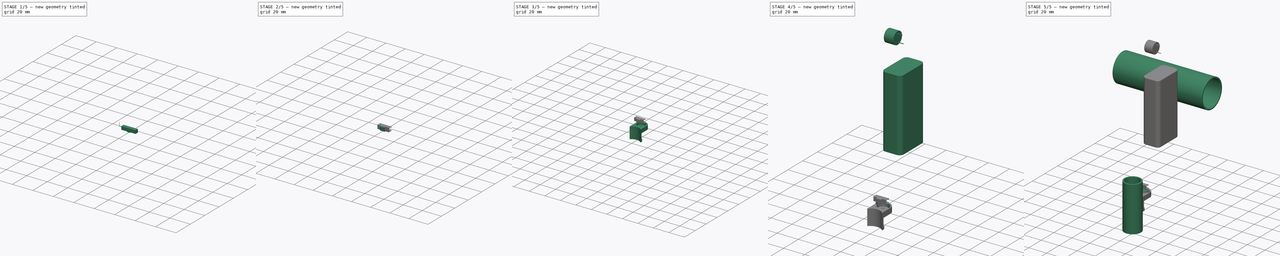
[diagram: build sequence overview — one tinted view per stage of 5, left to right]
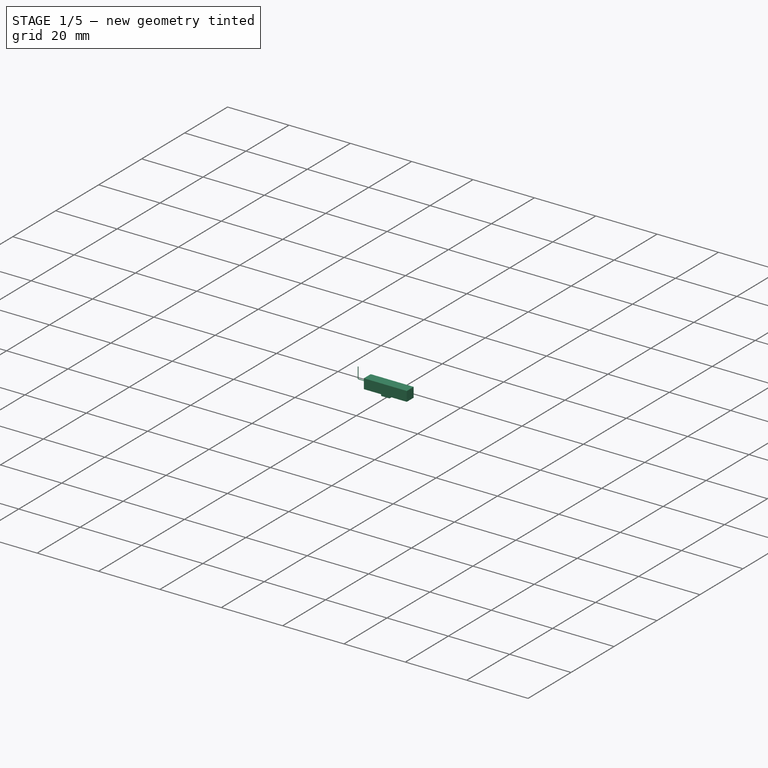
[diagram: stage 1 of 5 — iso view after this stage's code; geometry added in this stage tinted green]
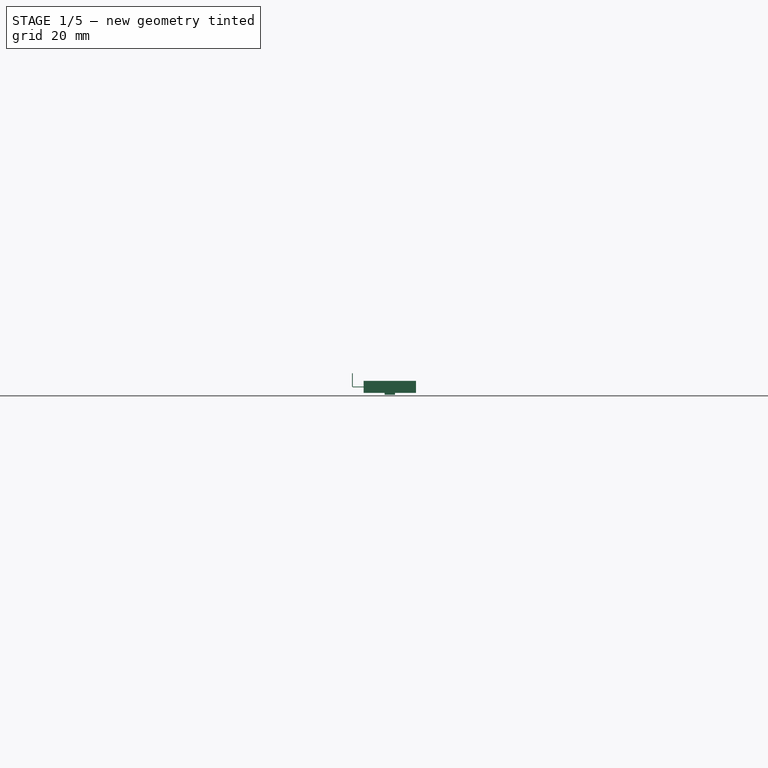
[diagram: stage 1 of 5 — front view after this stage's code; geometry added in this stage tinted green]
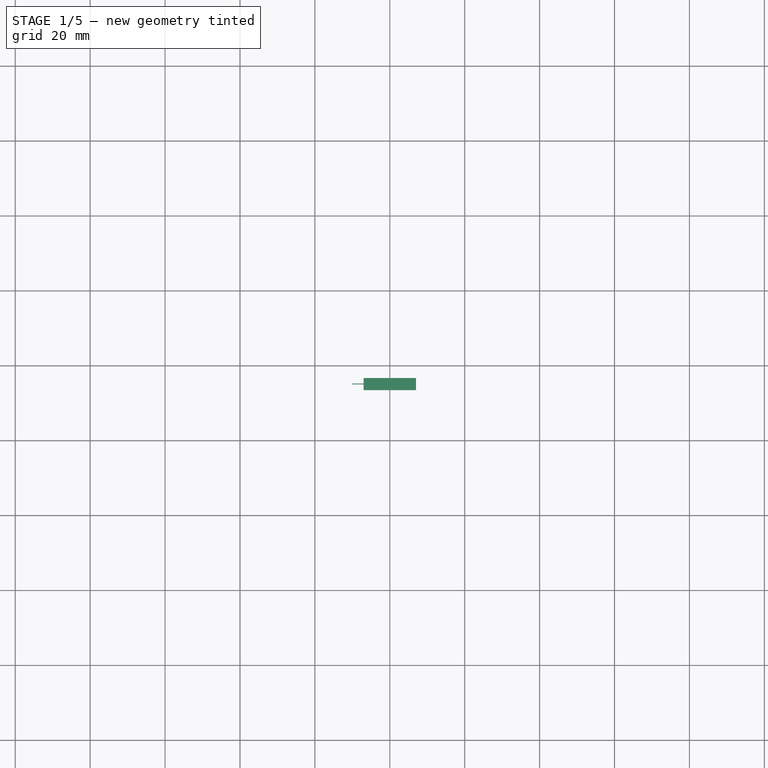
[diagram: stage 1 of 5 — top view after this stage's code; geometry added in this stage tinted green]
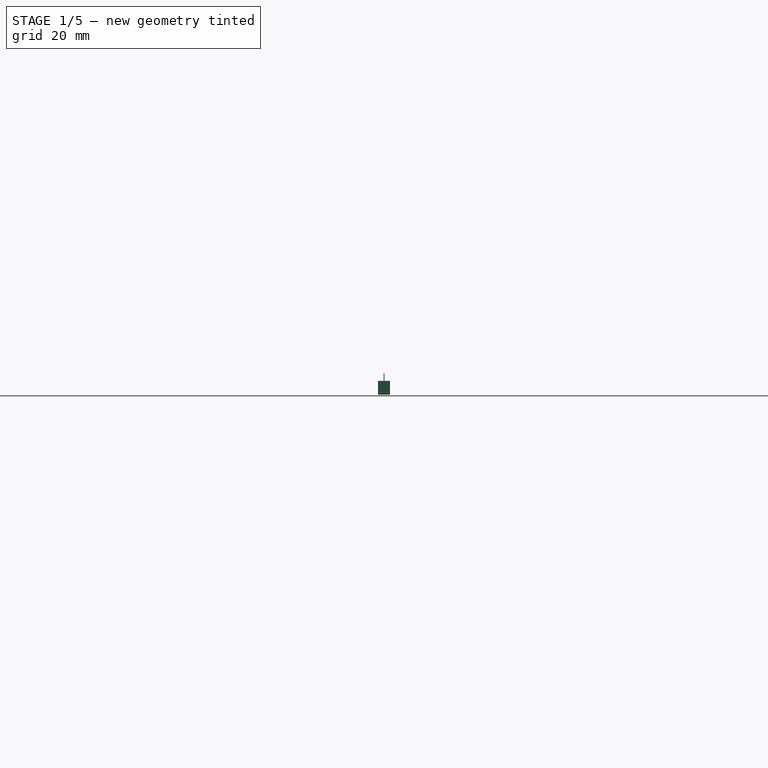
[diagram: stage 1 of 5 — right view after this stage's code; geometry added in this stage tinted green]
FCSTD DOCUMENT  (FreeCAD 0.19R22988 (Git))
Label: part mount
License: All rights reserved
LicenseURL: http://en.wikipedia.org/wiki/All_rights_reserved
objects: Sketcher::SketchObject×21, PartDesign::Plane×16, PartDesign::Pad×13, PartDesign::ShapeBinder×12, PartDesign::Body×9, PartDesign::Fillet×5, PartDesign::Line×4, PartDesign::Revolution×3, PartDesign::Pocket×3, PartDesign::Mirrored×2, PartDesign::AdditivePipe×1, PartDesign::Point×1
note: 115 computed .brp shape members not serialized (recipe doc carries the construction recipe); baked Part::Feature solids carry a one-line shape summary decoded from their .brp

FEATURE [PartDesign::Plane] DatumPlane
  AttachmentOffset = pos=(0,0,-10) rot=(0,0,1;0rad)
  Length = 64.3944
  MapMode = 5
  Placement = pos=(0,0,-10) rot=(0,0,1;0rad)
  ResizeMode = 0
  Support = -> [XY_Plane]
  Width = 117.994
FEATURE [PartDesign::Plane] DatumPlane001
  AttachmentOffset = pos=(0,0,110) rot=(0,0,1;0rad)
  Length = 64.3944
  MapMode = 5
  Placement = pos=(0,0,110) rot=(0,0,1;0rad)
  ResizeMode = 0
  Support = -> [XY_Plane]
  Width = 117.994
FEATURE [Sketcher::SketchObject] Sketch
  ExternalGeometry = -> [DatumPlane001,DatumPlane]
  MapMode = 5
  Placement = pos=(0,0,0) rot=(1,0,0;1.5708rad)
  Support = -> [XZ_Plane]
  sketch-geometry (8):
    g0: LineSegment StartX=10.1 StartY=110 StartZ=0 EndX=11.6 EndY=110 EndZ=0
    g1: LineSegment StartX=11.6 StartY=110 StartZ=0 EndX=11.6 EndY=-10 EndZ=0
    g2: LineSegment StartX=11.6 StartY=-10 StartZ=0 EndX=10.1 EndY=-10 EndZ=0
    g3: LineSegment StartX=10.1 StartY=-10 StartZ=0 EndX=10.1 EndY=110 EndZ=0
    g4: LineSegment StartX=-11.6 StartY=110 StartZ=0 EndX=-10.1 EndY=110 EndZ=0
    g5: LineSegment StartX=-10.1 StartY=110 StartZ=0 EndX=-10.1 EndY=-10 EndZ=0
    g6: LineSegment StartX=-10.1 StartY=-10 StartZ=0 EndX=-11.6 EndY=-10 EndZ=0
    g7: LineSegment StartX=-11.6 StartY=-10 StartZ=0 EndX=-11.6 EndY=110 EndZ=0
  constraints (23):
    c: Coincident(g0,g1)
    c: Coincident(g1,g2)
    c: Coincident(g2,g3)
    c: Coincident(g3,g0)
    c: Horizontal(g0)
    c: Horizontal(g2)
    c: Vertical(g1)
    c: Vertical(g3)
    c: Coincident(g4,g5)
    c: Coincident(g5,g6)
    c: Coincident(g6,g7)
    c: Coincident(g7,g4)
    c: Horizontal(g4)
    c: Horizontal(g6)
    c: Vertical(g5)
    c: Vertical(g7)
    c: Equal(g0,g4)
    c: Equal(g1,g5)
    c: DistanceX(g4,g0) = 23.2
    c: Symmetric(g0,g4,g-2)
    c: DistanceX(g0,g0) = 1.5
    c: PointOnObject(g0,g-3)
    c: PointOnObject(g1,g-4)
FEATURE [PartDesign::Revolution] Revolution
  AllowMultiFace = false
  Angle = 360
  Axis = (0,-2e-16,1)
  Base = (0,0,0)
  Placement = pos=(0,0,0) rot=(1,0,0;1.5708rad)
  Profile = -> Sketch
  ReferenceAxis = -> Sketch [V_Axis]
FEATURE [PartDesign::Body] Body003  label="Magnet"
  Group = -> [DatumPlane003,CopyPad002,Sketch007,Pad003,Fillet]
  Origin = -> Origin003
  Tip = -> Fillet
FEATURE [Sketcher::SketchObject] Sketch008
  ExternalGeometry = -> [Revolution]
  MapMode = 5
  Placement = pos=(0,0,110) rot=(0,0,1;0rad)
  Support = -> [DatumPlane001]
  sketch-geometry (8):
    g0: LineSegment StartX=6 StartY=11.6 StartZ=0 EndX=6 EndY=9.34666 EndZ=0
    g1: LineSegment StartX=-6 StartY=11.6 StartZ=0 EndX=-6 EndY=8.96742 EndZ=0
    g2: LineSegment StartX=-6 StartY=8.96742 StartZ=0 EndX=-5.65202 EndY=8.96742 EndZ=0
    g3: LineSegment StartX=6 StartY=9.34666 StartZ=0 EndX=5 EndY=9.34666 EndZ=0
    g4: ArcOfCircle CenterX=0 CenterY=0 CenterZ=0 NormalX=0 NormalY=0 NormalZ=1 AngleXU=0 Radius=10.6 StartAngle=1.07958 EndAngle=2.13319
    g5: LineSegment StartX=-6 StartY=11.6 StartZ=0 EndX=6 EndY=11.6 EndZ=0
    g6: GeomPoint X=0 Y=11.6 Z=0
    g7: GeomPoint X=0 Y=10.6 Z=0
  constraints (20):
    c: Coincident(g5,g1)
    c: Coincident(g5,g0)
    c: Coincident(g0,g3)
    c: Coincident(g1,g2)
    c: Vertical(g0)
    c: Vertical(g1)
    c: Symmetric(g0,g1,g-2)
    c: DistanceX(g5,g5) = 12
    c: Horizontal(g2)
    c: Horizontal(g3)
    c: Coincident(g4,g2)
    c: Coincident(g4,g3)
    c: Coincident(g4,g-1)
    c: DistanceX(g3,g3) = 1
    c: PointOnObject(g6,g-3)
    c: PointOnObject(g6,g-2)
    c: DistanceY(g6,g0) = 0
    c: PointOnObject(g7,g4)
    c: PointOnObject(g7,g-2)
    c: DistanceY(g7,g6) = 1
FEATURE [PartDesign::Pad] Pad004
  BaseFeature = -> Revolution
  Direction = (1,1,1)
  Length = 10
  Length2 = 100
  Placement = pos=(0,0,0) rot=(1,0,0;1.5708rad)
  Profile = -> Sketch008
  Type = 3
  UpToFace = -> DatumPlane
FEATURE [PartDesign::Plane] DatumPlane004
  Length = 127.252
  MapMode = 5
  Placement = pos=(0,0,0) rot=(0.57735,0.57735,0.57735;2.0944rad)
  ResizeMode = 0
  Support = -> [YZ_Plane]
  Width = 158.653
FEATURE [Sketcher::SketchObject] Sketch009
  ExternalGeometry = -> [Pad004,DatumPlane,DatumPlane001]
  MapMode = 5
  Placement = pos=(0,0,0) rot=(0.57735,0.57735,0.57735;2.0944rad)
  Support = -> [DatumPlane004]
  sketch-geometry (11):
    g0: Circle CenterX=55.3 CenterY=85 CenterZ=0 NormalX=0 NormalY=0 NormalZ=1 AngleXU=0 Radius=15.9
    g1: ArcOfCircle CenterX=73.6 CenterY=-2.03333 CenterZ=0 NormalX=0 NormalY=0 NormalZ=1 AngleXU=0 Radius=62.0333 StartAngle=1.5708 EndAngle=3.10881
    g2: LineSegment StartX=11.6 StartY=110 StartZ=0 EndX=73.6 EndY=110 EndZ=0
    g3: LineSegment StartX=78.6 StartY=105 StartZ=0 EndX=78.6 EndY=65 EndZ=0
    g4: ArcOfCircle CenterX=73.6 CenterY=65 CenterZ=0 NormalX=0 NormalY=0 NormalZ=1 AngleXU=0 Radius=5 StartAngle=4.71239 EndAngle=6.28319
    g5: ArcOfCircle CenterX=73.6 CenterY=105 CenterZ=0 NormalX=0 NormalY=0 NormalZ=1 AngleXU=0 Radius=5 StartAngle=-9e-16 EndAngle=1.5708
    g6: LineSegment [constr] StartX=55.3 StartY=85 StartZ=0 EndX=55.3 EndY=54.5823 EndZ=0
    g7: LineSegment [constr] StartX=55.3 StartY=100.9 StartZ=0 EndX=52.5522 EndY=100.9 EndZ=0
    g8: LineSegment StartX=11.6 StartY=110 StartZ=0 EndX=11.6 EndY=0 EndZ=0
    g9: LineSegment [constr] StartX=11.6 StartY=2.2e-15 StartZ=0 EndX=11.6 EndY=-10 EndZ=0
    g10: LineSegment [constr] StartX=73.6 StartY=65 StartZ=0 EndX=73.6 EndY=54.2273 EndZ=0
  constraints (31):
    c: Vertical(g3)
    c: Tangent(g3,g4) = 1.5708
    c: Tangent(g2,g5) = 1.5708
    c: Tangent(g3,g5) = 1.5708
    c: Horizontal(g2)
    c: Equal(g5,g4)
    c: Coincident(g6,g0)
    c: Vertical(g6)
    c: PointOnObject(g7,g6)
    c: Horizontal(g7)
    c: Tangent(g7,g0)
    c: Coincident(g8,g2)
    c: Coincident(g8,g1)
    c: Vertical(g8)
    c: Coincident(g9,g1)
    c: Vertical(g9)
    c: Radius(g5) = 5
    c: DistanceX(g0,g3) = 23.3
    c: Diameter(g0) = 31.8
    c: DistanceY(g0,g2) = 25
    c: Coincident(g1,g4)
    c: Tangent(g1,g4)
    c: Coincident(g10,g4)
    c: Vertical(g10)
    c: PointOnObject(g1,g10)
    c: DistanceY(g1,g2) = 50
    c: PointOnObject(g2,g-3)
    c: PointOnObject(g2,g-5)
    c: DistanceX(g2,g3) = 67
    c: DistanceY(g9,g1) = 10
    c: PointOnObject(g9,g-4)
FEATURE [PartDesign::Pad] Pad005
  BaseFeature = -> Pad004
  Direction = (1,1,1)
  Length = 5
  Length2 = 100
  Midplane = true
  Placement = pos=(0,0,0) rot=(1,0,0;1.5708rad)
  Profile = -> Sketch009
  Type = 0
FEATURE [PartDesign::Body] Body  label="Tube_Upper"
  Group = -> [Sketch,Revolution,DatumPlane001,DatumPlane,Sketch008,Pad004,DatumPlane004,Sketch009,Pad005]
  Origin = -> Origin
  Tip = -> Pad005
FEATURE [PartDesign::Plane] DatumPlane005
  AttachmentOffset = pos=(0,0,3.5) rot=(0,0,1;0rad)
  Length = 60
  MapMode = 5
  Placement = pos=(0,15.1,-6.7e-15) rot=(-1,0,0;1.5708rad)
  ResizeMode = 0
  Support = -> [Pad005]
  Width = 60
FEATURE [PartDesign::ShapeBinder] CopyPad005
  Placement = pos=(0,0,0) rot=(1,0,0;1.5708rad)
  TraceSupport = false
FEATURE [PartDesign::Plane] DatumPlane006
  Length = 60
  MapMode = 5
  Placement = pos=(0,-2.2e-15,-10) rot=(1,0,0;3.14159rad)
  ResizeMode = 0
  Support = -> [CopyPad005]
  Width = 60
FEATURE [PartDesign::ShapeBinder] CopyYZ_Plane
  Placement = pos=(0,0,0) rot=(0.57735,0.57735,0.57735;2.0944rad)
  TraceSupport = false
FEATURE [PartDesign::Plane] DatumPlane007
  Length = 60
  MapMode = 5
  Placement = pos=(0,0,0) rot=(0.57735,0.57735,0.57735;2.0944rad)
  ResizeMode = 0
  Support = -> [CopyYZ_Plane]
  Width = 60
FEATURE [Sketcher::SketchObject] Sketch010
  ExternalGeometry = -> [DatumPlane006,DatumPlane007]
  MapMode = 5
  Placement = pos=(0,15.1,-6.7e-15) rot=(-1,0,0;1.5708rad)
  Support = -> [DatumPlane005]
  sketch-geometry (9):
    g0: LineSegment StartX=7 StartY=7.5 StartZ=0 EndX=1.37971 EndY=7.5 EndZ=0
    g1: LineSegment StartX=-7 StartY=7.5 StartZ=0 EndX=-7 EndY=4.3 EndZ=0
    g2: LineSegment StartX=-7 StartY=4.3 StartZ=0 EndX=7 EndY=4.3 EndZ=0
    g3: LineSegment StartX=7 StartY=4.3 StartZ=0 EndX=7 EndY=7.5 EndZ=0
    g4: LineSegment StartX=1.37971 StartY=8 StartZ=0 EndX=-1.3797 EndY=8 EndZ=0
    g5: LineSegment StartX=-1.3797 StartY=8 StartZ=0 EndX=-1.3797 EndY=7.5 EndZ=0
    g6: LineSegment StartX=1.37971 StartY=7.5 StartZ=0 EndX=1.37971 EndY=8 EndZ=0
    g7: GeomPoint X=1.1e-15 Y=10 Z=0
    g8: LineSegment StartX=-1.3797 StartY=7.5 StartZ=0 EndX=-7 EndY=7.5 EndZ=0
  constraints (22):
    c: Coincident(g8,g1)
    c: Coincident(g1,g2)
    c: Coincident(g2,g3)
    c: Coincident(g3,g0)
    c: Horizontal(g0)
    c: Vertical(g1)
    c: Vertical(g3)
    c: Coincident(g4,g5)
    c: Coincident(g6,g4)
    c: Vertical(g5)
    c: Vertical(g6)
    c: PointOnObject(g7,g-3)
    c: PointOnObject(g7,g-4)
    c: Symmetric(g1,g2,g-4)
    c: Symmetric(g4,g4,g-4)
    c: DistanceX(g2,g2) = 14
    c: Coincident(g8,g5)
    c: Tangent(g0,g8)
    c: Coincident(g6,g0)
    c: DistanceY(g1,g4) = 3.7
    c: DistanceY(g1,g1) = 3.2
    c: DistanceY(g4,g7) = 2
FEATURE [PartDesign::Pad] Pad006
  Direction = (1,1,1)
  Length = 3.2
  Length2 = 100
  Midplane = true
  Placement = pos=(0,15.1,-6.7e-15) rot=(-1,0,0;1.5708rad)
  Profile = -> Sketch010
  Type = 0
FEATURE [Sketcher::SketchObject] Sketch011
  ExternalGeometry = -> [Pad006]
  MapMode = 5
  Placement = pos=(0,15.1,-6.7e-15) rot=(-1,0,0;1.5708rad)
  Support = -> [DatumPlane005]
  sketch-geometry (5):
    g0: LineSegment StartX=-7 StartY=5.9 StartZ=0 EndX=-9.79066 EndY=5.9 EndZ=0
    g1: LineSegment StartX=-10 StartY=5.69066 StartZ=0 EndX=-10 EndY=2.28133 EndZ=0
    g2: Circle [constr] CenterX=4.71411 CenterY=5.9 CenterZ=0 NormalX=0 NormalY=0 NormalZ=1 AngleXU=0 Radius=1.6
    g3: LineSegment [constr] StartX=15.3338 StartY=5.9 StartZ=0 EndX=-16.1718 EndY=5.9 EndZ=0
    g4: ArcOfCircle CenterX=-9.79066 CenterY=5.69066 CenterZ=0 NormalX=0 NormalY=0 NormalZ=1 AngleXU=0 Radius=0.209336 StartAngle=1.5708 EndAngle=3.14159
  constraints (9):
    c: PointOnObject(g0,g-6)
    c: Horizontal(g0)
    c: Vertical(g1)
    c: Horizontal(g3)
    c: PointOnObject(g2,g3)
    c: PointOnObject(g0,g3)
    c: Tangent(g0,g4) = -1.5708
    c: Tangent(g1,g4) = -1.5708
    c: DistanceX(g1,g0) = 3
FEATURE [Sketcher::SketchObject] Sketch012
  ExternalGeometry = -> [Sketch011]
  MapMode = 5
  Placement = pos=(-7,15.1,-6.7e-15) rot=(0,-1,0;1.5708rad)
  Support = -> [Pad006]
  sketch-geometry (1):
    g0: Circle CenterX=-5.9 CenterY=0 CenterZ=0 NormalX=0 NormalY=0 NormalZ=1 AngleXU=0 Radius=0.1
  constraints (2):
    c: Coincident(g0,g-3)
    c: Diameter(g0) = 0.2
FEATURE [PartDesign::AdditivePipe] AdditivePipe
  AuxilleryCurvelinear = true
  AuxillerySpineTangent = false
  BaseFeature = -> Pad006
  Binormal = (0,0,0)
  Mode = 0
  Placement = pos=(0,15.1,-6.7e-15) rot=(-1,0,0;1.5708rad)
  Profile = -> Sketch012
  Spine = -> Sketch011 [Edge1,Edge2,Edge3]
  SpineTangent = false
  Transformation = 0
  Transition = 0
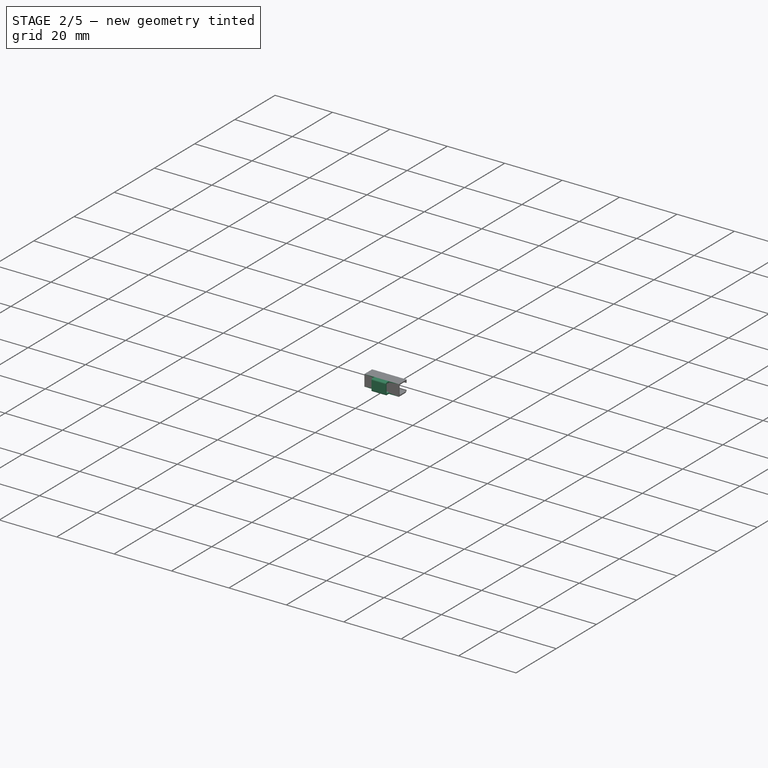
[diagram: stage 2 of 5 — iso view after this stage's code; geometry added in this stage tinted green]
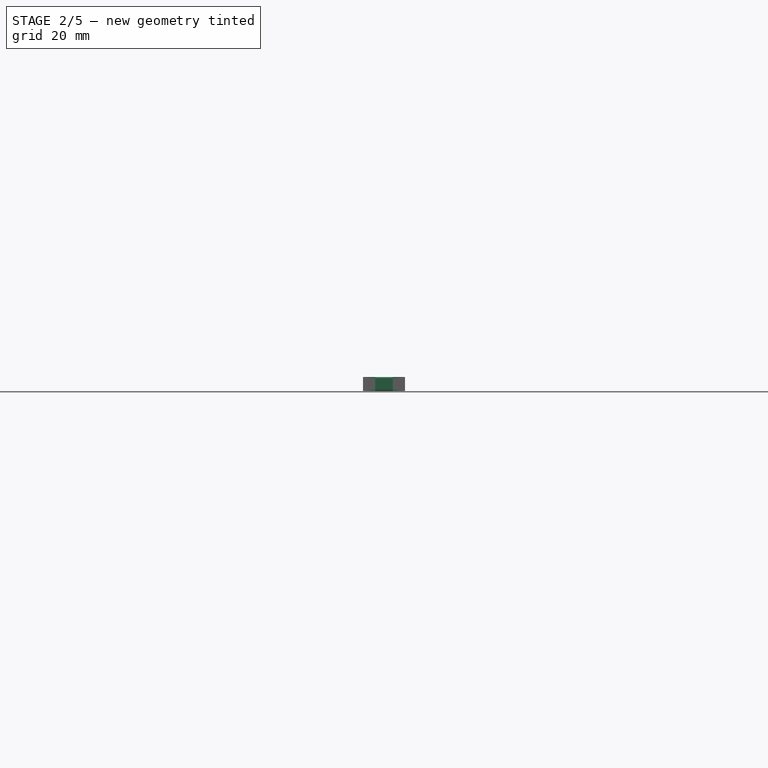
[diagram: stage 2 of 5 — front view after this stage's code; geometry added in this stage tinted green]
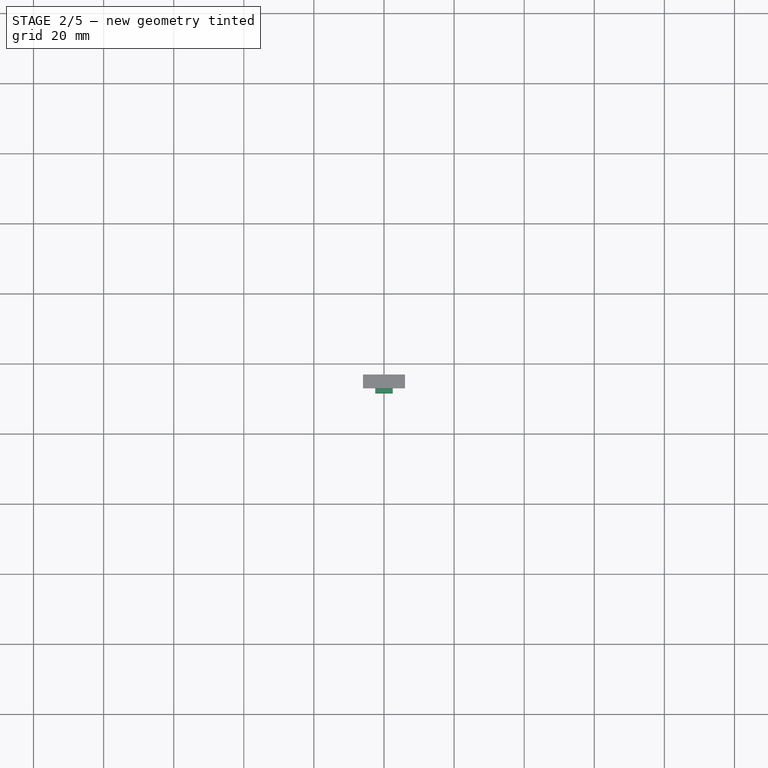
[diagram: stage 2 of 5 — top view after this stage's code; geometry added in this stage tinted green]
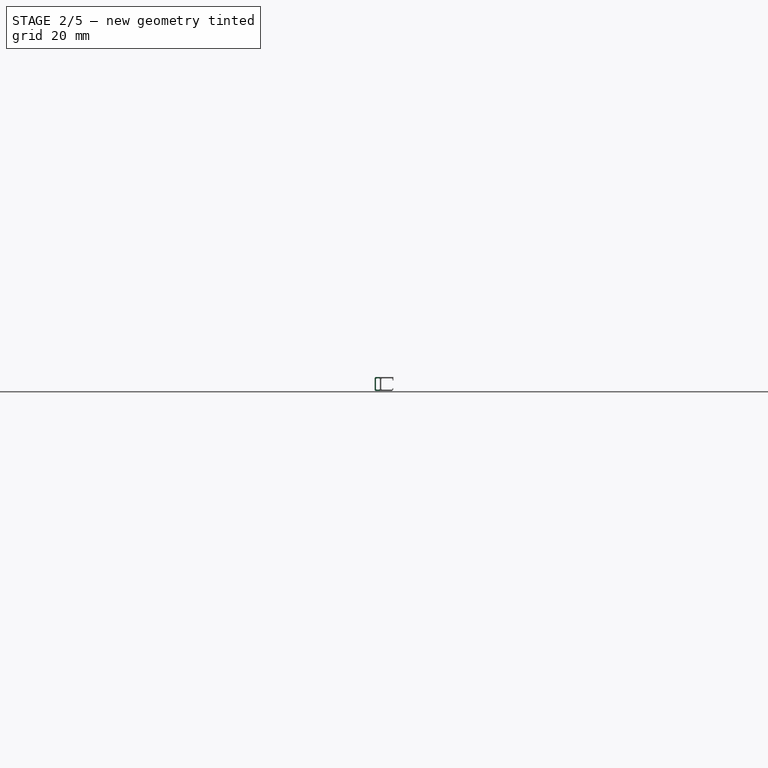
[diagram: stage 2 of 5 — right view after this stage's code; geometry added in this stage tinted green]
FEATURE [PartDesign::Mirrored] Mirrored
  BaseFeature = -> AdditivePipe
  MirrorPlane = -> DatumPlane007
  Originals = -> [AdditivePipe]
  Placement = pos=(0,15.1,-6.7e-15) rot=(-1,0,0;1.5708rad)
FEATURE [PartDesign::Fillet] Fillet001
  Base = -> Mirrored [Face4,Face6,Face10,Face9,Face8,Face1,Face5,Face3]
  BaseFeature = -> Mirrored
  Placement = pos=(0,15.1,-6.7e-15) rot=(-1,0,0;1.5708rad)
  Radius = 0.22
  SupportTransform = false
FEATURE [PartDesign::Body] Body002  label="Magnet_Holder"
  Group = -> [DatumPlane002,Sketch002,Pad,Sketch003,Pocket,Sketch004,Pocket001,Sketch005,Pad001,Sketch006,Pad002,DatumLine002,DatumPoint,DatumPlane010,DatumPlane011,Sketch017,Revolution002,Mirrored001]
  Origin = -> Origin002
  Tip = -> Mirrored001
FEATURE [PartDesign::ShapeBinder] CopyFillet001
  Placement = pos=(0,13.6,-3e-15) rot=(-1,0,0;1.5708rad)
  TraceSupport = false
FEATURE [PartDesign::Plane] DatumPlane012
  Length = 60
  MapMode = 5
  Placement = pos=(6e-16,13.6,-4.3) rot=(0,0,1;0rad)
  ResizeMode = 0
  Support = -> [CopyFillet001]
  Width = 60
FEATURE [PartDesign::Plane] DatumPlane013
  Length = 60
  MapMode = 5
  Placement = pos=(0,13.5,-6.5e-15) rot=(1,0,0;1.5708rad)
  ResizeMode = 0
  Support = -> [Fillet001]
  Width = 60
FEATURE [PartDesign::ShapeBinder] CopyFillet001001
  Placement = pos=(0,-1.6,-3e-15) rot=(0,0,1;0rad)
  TraceSupport = false
FEATURE [PartDesign::ShapeBinder] CopyFillet001002
  Placement = pos=(0,13.6,-3e-15) rot=(-1,0,0;1.5708rad)
  TraceSupport = false
FEATURE [PartDesign::Plane] DatumPlane014
  Length = 60
  MapMode = 5
  Placement = pos=(0,13.6,-7.5) rot=(0,1,0;3.14159rad)
  ResizeMode = 0
  Support = -> [CopyFillet001002]
  Width = 60
FEATURE [PartDesign::Plane] DatumPlane015
  Length = 60
  MapMode = 5
  Placement = pos=(0,16.7,-6.8e-15) rot=(-1,0,0;1.5708rad)
  ResizeMode = 0
  Support = -> [Fillet001]
  Width = 60
FEATURE [Sketcher::SketchObject] Sketch018
  ExternalGeometry = -> [DatumPlane012,DatumPlane015,DatumPlane014,DatumPlane013]
  MapMode = 5
  Placement = pos=(0,0,0) rot=(0.57735,0.57735,0.57735;2.0944rad)
  Support = -> [YZ_Plane008]
  sketch-geometry (19):
    g0: LineSegment StartX=13.1 StartY=-7.9 StartZ=0 EndX=13.1 EndY=-3.9 EndZ=0
    g1: LineSegment StartX=13.1 StartY=-3.9 StartZ=0 EndX=16.95 EndY=-3.9 EndZ=0
    g2: LineSegment StartX=16.95 StartY=-3.9 StartZ=0 EndX=16.95 EndY=-4.9 EndZ=0
    g3: LineSegment StartX=16.75 StartY=-4.5 StartZ=0 EndX=16.55 EndY=-4.3 EndZ=0
    g4: LineSegment StartX=16.55 StartY=-4.3 StartZ=0 EndX=13.8 EndY=-4.3 EndZ=0
    g5: LineSegment StartX=13.5 StartY=-4.6 StartZ=0 EndX=13.5 EndY=-7.2 EndZ=0
    g6: LineSegment StartX=13.8 StartY=-7.5 StartZ=0 EndX=16.5 EndY=-7.5 EndZ=0
    g7: LineSegment StartX=16.5 StartY=-7.5 StartZ=0 EndX=16.7 EndY=-7.3 EndZ=0
    g8: LineSegment StartX=16.7 StartY=-7.3 StartZ=0 EndX=16.7 EndY=-7.1 EndZ=0
    g9: LineSegment StartX=16.7 StartY=-7.1 StartZ=0 EndX=16.9 EndY=-7.1 EndZ=0
    g10: LineSegment StartX=16.9 StartY=-7.1 StartZ=0 EndX=16.9 EndY=-7.5 EndZ=0
    g11: LineSegment StartX=16.5 StartY=-7.9 StartZ=0 EndX=13.1 EndY=-7.9 EndZ=0
    g12: GeomPoint X=16.7 Y=-4.3 Z=0
    g13: GeomPoint X=16.7 Y=-7.5 Z=0
    g14: LineSegment StartX=16.95 StartY=-4.9 StartZ=0 EndX=16.75 EndY=-4.9 EndZ=0
    g15: LineSegment StartX=16.75 StartY=-4.9 StartZ=0 EndX=16.75 EndY=-4.5 EndZ=0
    g16: LineSegment StartX=16.5 StartY=-7.9 StartZ=0 EndX=16.9 EndY=-7.5 EndZ=0
    g17: ArcOfCircle CenterX=13.8 CenterY=-4.6 CenterZ=0 NormalX=0 NormalY=0 NormalZ=1 AngleXU=0 Radius=0.3 StartAngle=1.5708 EndAngle=3.14159
    g18: ArcOfCircle CenterX=13.8 CenterY=-7.2 CenterZ=0 NormalX=0 NormalY=0 NormalZ=1 AngleXU=0 Radius=0.3 StartAngle=3.14159 EndAngle=4.71239
  constraints (53):
    c: Vertical(g0)
    c: Coincident(g0,g1)
    c: Horizontal(g1)
    c: Coincident(g1,g2)
    c: Vertical(g2)
    c: Coincident(g3,g4)
    c: Horizontal(g4)
    c: Vertical(g5)
    c: Horizontal(g6)
    c: Coincident(g6,g7)
    c: Coincident(g7,g8)
    c: Vertical(g8)
    c: Coincident(g8,g9)
    c: Horizontal(g9)
    c: Coincident(g9,g10)
    c: Horizontal(g11)
    c: Coincident(g0,g11)
    c: DistanceX(g3,g1) = 0.4
    c: DistanceY(g3,g1) = 0.4
    c: DistanceY(g11,g6) = 0.4
    c: PointOnObject(g12,g-3)
    c: PointOnObject(g13,g-5)
    c: PointOnObject(g12,g-4)
    c: PointOnObject(g13,g-4)
    c: DistanceX(g12,g3) = 0.05
    c: DistanceY(g2,g2) = 1
    c: Angle(g3,g-4) = 2.35619
    c: DistanceY(g3,g3) = 0.2
    c: Coincident(g2,g14)
    c: Horizontal(g14)
    c: Coincident(g14,g15)
    c: Coincident(g15,g3)
    c: Vertical(g15)
    c: Angle(g7,g-4) = 0.785398
    c: Coincident(g11,g16)
    c: Coincident(g16,g10)
    c: Vertical(g10)
    c: DistanceX(g6,g9) = 0.4
    c: DistanceX(g6,g7) = 0.2
    c: DistanceY(g11,g9) = 0.8
    c: DistanceX(g13,g8) = 0
    c: Angle(g16,g11) = 2.35619
    c: Vertical(g6,g11)
    c: Tangent(g4,g17) = -1.5708
    c: Tangent(g5,g17) = -1.5708
    c: Tangent(g5,g18) = -1.5708
    c: Tangent(g6,g18) = -1.5708
    c: Equal(g17,g18)
    c: DistanceX(g0,g5) = 0.4
    c: PointOnObject(g6,g-5)
    c: PointOnObject(g4,g-3)
    c: Radius(g17) = 0.3
    c: PointOnObject(g5,g-6)
FEATURE [PartDesign::Pad] Pad011
  Direction = (1,1,1)
  Length = 6
  Length2 = 6
  Midplane = true
  Placement = pos=(0,0,0) rot=(0.57735,0.57735,0.57735;2.0944rad)
  Profile = -> Sketch018
  Type = 4
FEATURE [PartDesign::ShapeBinder] CopyFillet001003
  Placement = pos=(0,1.6,-3e-15) rot=(0,0,1;0rad)
  TraceSupport = false
FEATURE [Sketcher::SketchObject] Sketch019
  ExternalGeometry = -> [Pad011]
  MapMode = 5
  Placement = pos=(6e-15,13.5,-4.5e-15) rot=(0.57735,0.57735,0.57735;4.18879rad)
  Support = -> [Pad011]
  sketch-geometry (5):
    g0: GeomPoint X=-7.9 Y=0 Z=0
    g1: LineSegment StartX=-9.9 StartY=2 StartZ=0 EndX=-5.9 EndY=2 EndZ=0
    g2: LineSegment StartX=-5.9 StartY=2 StartZ=0 EndX=-5.9 EndY=-2 EndZ=0
    g3: LineSegment StartX=-5.9 StartY=-2 StartZ=0 EndX=-9.9 EndY=-2 EndZ=0
    g4: LineSegment StartX=-9.9 StartY=-2 StartZ=0 EndX=-9.9 EndY=2 EndZ=0
  constraints (12):
    c: PointOnObject(g0,g-3)
    c: Coincident(g1,g2)
    c: Coincident(g2,g3)
    c: Coincident(g3,g4)
    c: Coincident(g4,g1)
    c: Horizontal(g1)
    c: Horizontal(g3)
    c: Vertical(g2)
    c: Symmetric(g1,g3,g-1)
    c: DistanceY(g1,g-3) = 4
    c: DistanceX(g1,g-3) = 2
    c: DistanceX(g3,g3) = 4
FEATURE [PartDesign::Pocket] Pocket002
  BaseFeature = -> Pad011
  Length = 5
  Length2 = 100
  Placement = pos=(0,0,0) rot=(0.57735,0.57735,0.57735;2.0944rad)
  Profile = -> Sketch019
  Reversed = true
  Type = 1
FEATURE [Sketcher::SketchObject] Sketch020
  ExternalGeometry = -> [Pad011]
  MapMode = 5
  Placement = pos=(0,0,0) rot=(0.57735,0.57735,0.57735;2.0944rad)
  Support = -> [YZ_Plane008]
  sketch-geometry (10):
    g0: LineSegment StartX=13.1 StartY=-3.9 StartZ=0 EndX=12 EndY=-3.9 EndZ=0
    g1: LineSegment StartX=11.6 StartY=-4.3 StartZ=0 EndX=11.6 EndY=-7.5 EndZ=0
    g2: LineSegment StartX=12 StartY=-7.9 StartZ=0 EndX=13.1 EndY=-7.9 EndZ=0
    g3: LineSegment StartX=13.1 StartY=-7.9 StartZ=0 EndX=13.1 EndY=-7.5 EndZ=0
    g4: ArcOfCircle CenterX=12 CenterY=-4.3 CenterZ=0 NormalX=0 NormalY=0 NormalZ=1 AngleXU=0 Radius=0.4 StartAngle=1.5708 EndAngle=3.14159
    g5: ArcOfCircle CenterX=12 CenterY=-7.5 CenterZ=0 NormalX=0 NormalY=0 NormalZ=1 AngleXU=0 Radius=0.4 StartAngle=3.14159 EndAngle=4.71239
    g6: LineSegment StartX=13.1 StartY=-4.3 StartZ=0 EndX=12 EndY=-4.3 EndZ=0
    g7: LineSegment StartX=12 StartY=-4.3 StartZ=0 EndX=12 EndY=-7.5 EndZ=0
    g8: LineSegment StartX=13.1 StartY=-4.3 StartZ=0 EndX=13.1 EndY=-3.9 EndZ=0
    g9: LineSegment StartX=12 StartY=-7.5 StartZ=0 EndX=13.1 EndY=-7.5 EndZ=0
  constraints (25):
    c: Coincident(g2,g3)
    c: Coincident(g8,g0)
    c: Horizontal(g0)
    c: Horizontal(g2)
    c: Vertical(g1)
    c: Vertical(g3)
    c: PointOnObject(g0,g-3)
    c: Tangent(g1,g4) = -1.5708
    c: Tangent(g0,g4) = -1.5708
    c: Tangent(g1,g5) = -1.5708
    c: Tangent(g2,g5) = -1.5708
    c: Coincident(g6,g7)
    c: Horizontal(g6)
    c: Vertical(g7)
    c: Coincident(g4,g6)
    c: Coincident(g7,g5)
    c: Coincident(g8,g6)
    c: Tangent(g3,g8)
    c: DistanceX(g5,g3) = 1.1
    c: PointOnObject(g2,g-5)
    c: PointOnObject(g0,g-4)
    c: DistanceX(g1,g4) = 0.4
    c: Coincident(g9,g5)
    c: Coincident(g9,g3)
    c: Horizontal(g9)
FEATURE [PartDesign::Pad] Pad012
  BaseFeature = -> Pocket002
  Direction = (1,1,1)
  Length = 5
  Length2 = 100
  Midplane = true
  Placement = pos=(0,0,0) rot=(0.57735,0.57735,0.57735;2.0944rad)
  Profile = -> Sketch020
  Type = 0
FEATURE [PartDesign::Fillet] Fillet004
  Base = -> Pad012 [Edge98,Edge106,Edge34,Edge29]
  BaseFeature = -> Pad012
  Placement = pos=(0,0,0) rot=(0.57735,0.57735,0.57735;2.0944rad)
  Radius = 0.3
  SupportTransform = false
FEATURE [PartDesign::Body] Body008  label="reed holder"
  Group = -> [CopyFillet001003,DatumPlane015,CopyFillet001002,DatumPlane014,CopyFillet001001,DatumPlane013,CopyFillet001,DatumPlane012,Sketch018,Pad011,Sketch019,Pocket002,Sketch020,Pad012,Fillet004]
  Origin = -> Origin008
  Tip = -> Fillet004
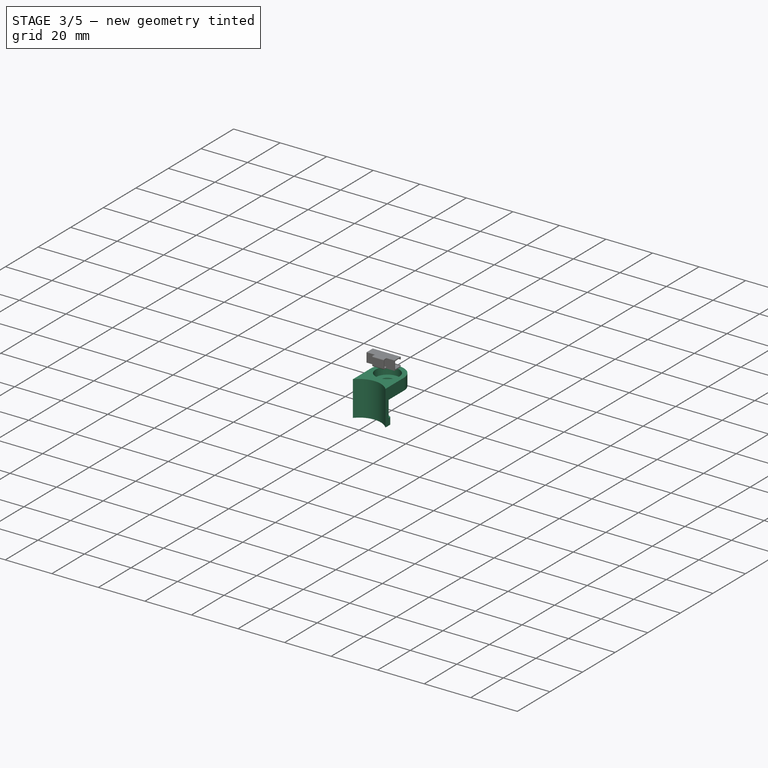
[diagram: stage 3 of 5 — iso view after this stage's code; geometry added in this stage tinted green]
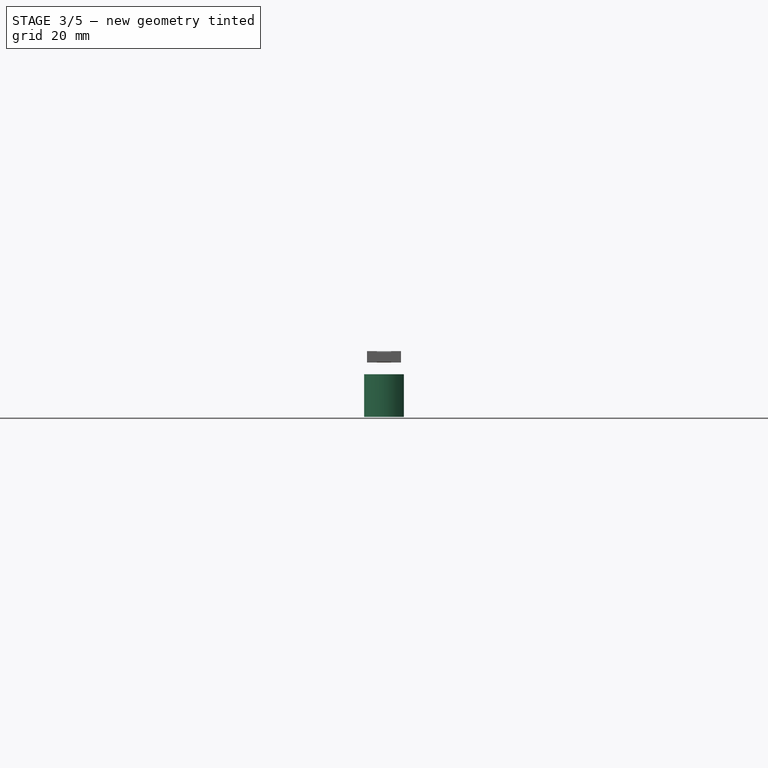
[diagram: stage 3 of 5 — front view after this stage's code; geometry added in this stage tinted green]
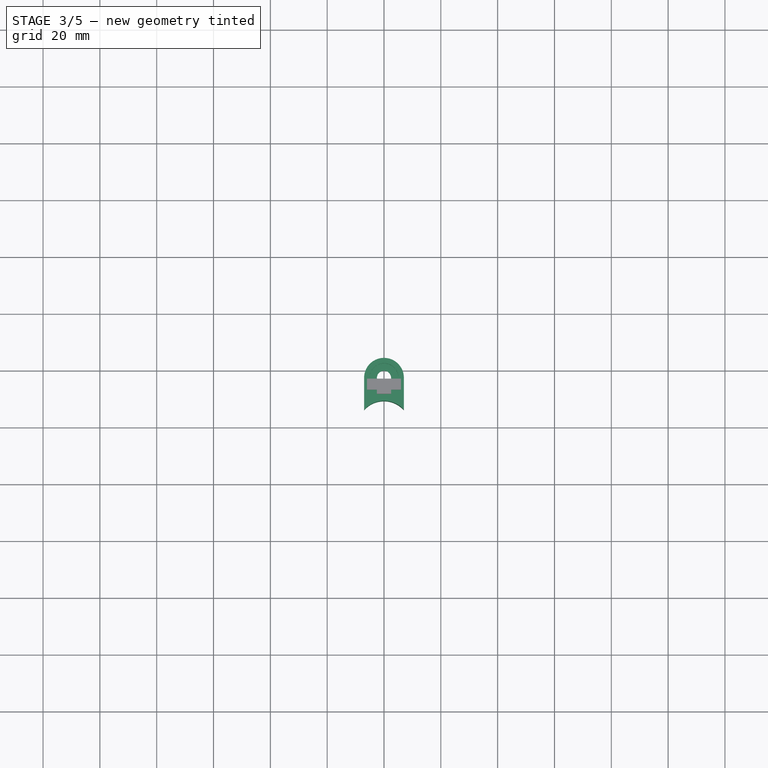
[diagram: stage 3 of 5 — top view after this stage's code; geometry added in this stage tinted green]
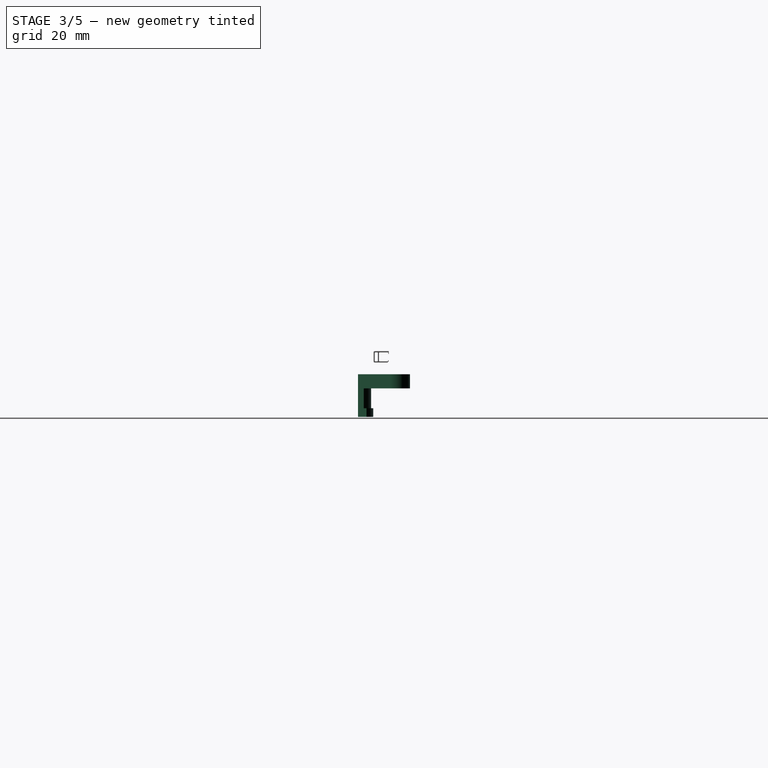
[diagram: stage 3 of 5 — right view after this stage's code; geometry added in this stage tinted green]
FEATURE [PartDesign::Body] Body001  label="Tube_Lower"
  Group = -> [Sketch001,Revolution001]
  Origin = -> Origin001
  Tip = -> Revolution001
FEATURE [PartDesign::Plane] DatumPlane002
  AttachmentOffset = pos=(0,0,2) rot=(0,0,1;0rad)
  Length = 60
  MapMode = 5
  Placement = pos=(0,-2.7e-15,-12) rot=(1,0,0;3.14159rad)
  ResizeMode = 0
  Support = -> [Revolution]
  Width = 60
FEATURE [Sketcher::SketchObject] Sketch002
  MapMode = 5
  Placement = pos=(0,-2.7e-15,-12) rot=(1,0,0;3.14159rad)
  Support = -> [DatumPlane002]
  sketch-geometry (7):
    g0: LineSegment StartX=-7 StartY=-6.12291 StartZ=0 EndX=-7 EndY=-17.4 EndZ=0
    g1: ArcOfCircle CenterX=-1e-16 CenterY=-17.4 CenterZ=0 NormalX=0 NormalY=0 NormalZ=1 AngleXU=0 Radius=7 StartAngle=3.1416 EndAngle=6.28318
    g2: LineSegment StartX=7 StartY=-17.4 StartZ=0 EndX=7 EndY=-6.12291 EndZ=0
    g3: ArcOfCircle CenterX=0 CenterY=0 CenterZ=0 NormalX=0 NormalY=0 NormalZ=1 AngleXU=0 Radius=9.3 StartAngle=3.86025 EndAngle=5.56452
    g4: Circle [constr] CenterX=-1e-16 CenterY=-17.4 CenterZ=0 NormalX=0 NormalY=0 NormalZ=1 AngleXU=0 Radius=5.1
    g5: GeomPoint X=0 Y=-9.3 Z=0
    g6: GeomPoint X=0 Y=-12.3 Z=0
  constraints (19):
    c: Vertical(g0)
    c: Vertical(g2)
    c: Coincident(g3,g2)
    c: Coincident(g0,g3)
    c: Coincident(g1,g0)
    c: Coincident(g1,g2)
    c: Coincident(g3,g-1)
    c: Symmetric(g2,g0,g-2)
    c: Diameter(g3) = 18.6
    c: Tangent(g2,g1)
    c: Tangent(g0,g1)
    c: Coincident(g4,g1)
    c: DistanceX(g0,g1) = 14
    c: Diameter(g4) = 10.2
    c: PointOnObject(g5,g-2)
    c: PointOnObject(g6,g-2)
    c: PointOnObject(g5,g3)
    c: PointOnObject(g6,g4)
    c: DistanceY(g6,g5) = 3
FEATURE [PartDesign::Pad] Pad
  AllowMultiFace = false
  Direction = (1,1,1)
  Length = 5
  Length2 = 100
  Placement = pos=(0,3e-15,-12) rot=(1,0,0;3.14159rad)
  Profile = -> Sketch002
  Type = 0
FEATURE [Sketcher::SketchObject] Sketch003
  ExternalGeometry = -> [Sketch002]
  MapMode = 5
  Placement = pos=(0,3e-15,-12) rot=(0,0,1;0rad)
  Support = -> [Pad]
  sketch-geometry (1):
    g0: Circle CenterX=-2e-16 CenterY=17.4 CenterZ=0 NormalX=0 NormalY=0 NormalZ=1 AngleXU=0 Radius=5.1
  constraints (2):
    c: Diameter(g0) = 10.2
    c: Coincident(g0,g-3)
FEATURE [PartDesign::Pocket] Pocket
  AllowMultiFace = false
  BaseFeature = -> Pad
  Length = 3
  Length2 = 100
  Placement = pos=(0,3e-15,-12) rot=(1,0,0;3.14159rad)
  Profile = -> Sketch003
  Type = 0
FEATURE [Sketcher::SketchObject] Sketch004
  ExternalGeometry = -> [Pocket]
  MapMode = 5
  Placement = pos=(0,3e-15,-15) rot=(0,0,1;0rad)
  Support = -> [Pocket]
  sketch-geometry (1):
    g0: Circle CenterX=-2e-16 CenterY=17.4 CenterZ=0 NormalX=0 NormalY=0 NormalZ=1 AngleXU=0 Radius=2.5
  constraints (2):
    c: Coincident(g0,g-3)
    c: Diameter(g0) = 5
FEATURE [PartDesign::Pocket] Pocket001
  AllowMultiFace = false
  BaseFeature = -> Pocket
  Length = 5
  Length2 = 100
  Placement = pos=(0,3e-15,-12) rot=(1,0,0;3.14159rad)
  Profile = -> Sketch004
  Type = 1
FEATURE [Sketcher::SketchObject] Sketch005
  ExternalGeometry = -> [Pocket001]
  MapMode = 5
  Placement = pos=(0,4e-15,-17) rot=(1,0,0;3.14159rad)
  Support = -> [Pocket001]
  sketch-geometry (4):
    g0: LineSegment StartX=-7 StartY=-6.12291 StartZ=0 EndX=-7 EndY=-8.12291 EndZ=0
    g1: ArcOfCircle CenterX=0 CenterY=0 CenterZ=0 NormalX=0 NormalY=0 NormalZ=1 AngleXU=0 Radius=10.7229 StartAngle=4.00111 EndAngle=5.42367
    g2: LineSegment StartX=7 StartY=-8.12291 StartZ=0 EndX=7 EndY=-6.12291 EndZ=0
    g3: ArcOfCircle CenterX=4.4e-15 CenterY=0 CenterZ=0 NormalX=0 NormalY=0 NormalZ=1 AngleXU=0 Radius=9.3 StartAngle=3.86025 EndAngle=5.56452
  constraints (11):
    c: Coincident(g1,g-1)
    c: Coincident(g1,g0)
    c: Vertical(g0)
    c: Vertical(g2)
    c: Coincident(g2,g-5)
    c: Coincident(g2,g1)
    c: DistanceY(g2,g2) = 2
    c: Coincident(g0,g-5)
    c: Coincident(g3,g0)
    c: Coincident(g3,g2)
    c: Coincident(g3,g1)
FEATURE [PartDesign::Pad] Pad001
  AllowMultiFace = false
  BaseFeature = -> Pocket001
  Direction = (1,1,1)
  Length = 10
  Length2 = 100
  Placement = pos=(0,3e-15,-12) rot=(1,0,0;3.14159rad)
  Profile = -> Sketch005
  Type = 0
FEATURE [Sketcher::SketchObject] Sketch006
  ExternalGeometry = -> [Pad001]
  MapMode = 5
  Placement = pos=(0,3e-15,-27) rot=(1,0,0;3.14159rad)
  Support = -> [Pad001]
  sketch-geometry (4):
    g0: ArcOfCircle CenterX=0 CenterY=0 CenterZ=0 NormalX=0 NormalY=0 NormalZ=1 AngleXU=0 Radius=9.3 StartAngle=3.86025 EndAngle=5.56452
    g1: LineSegment StartX=-7 StartY=-6.12291 StartZ=0 EndX=-7 EndY=-9.12291 EndZ=0
    g2: ArcOfCircle CenterX=0 CenterY=0 CenterZ=0 NormalX=0 NormalY=0 NormalZ=1 AngleXU=0 Radius=11.499 StartAngle=4.05791 EndAngle=5.36687
    g3: LineSegment StartX=7 StartY=-6.12291 StartZ=0 EndX=7 EndY=-9.12291 EndZ=0
  constraints (11):
    c: Coincident(g0,g1)
    c: Coincident(g1,g2)
    c: Coincident(g2,g3)
    c: Coincident(g3,g0)
    c: Coincident(g0,g-1)
    c: Coincident(g2,g0)
    c: Vertical(g3)
    c: DistanceY(g3,g3) = 3
    c: Equal(g1,g3)
    c: Vertical(g1)
    c: Coincident(g0,g-3)
FEATURE [PartDesign::Pad] Pad002
  AllowMultiFace = false
  BaseFeature = -> Pad001
  Direction = (1,1,1)
  Length = 3
  Length2 = 100
  Placement = pos=(0,3e-15,-12) rot=(1,0,0;3.14159rad)
  Profile = -> Sketch006
  Reversed = true
  Type = 0
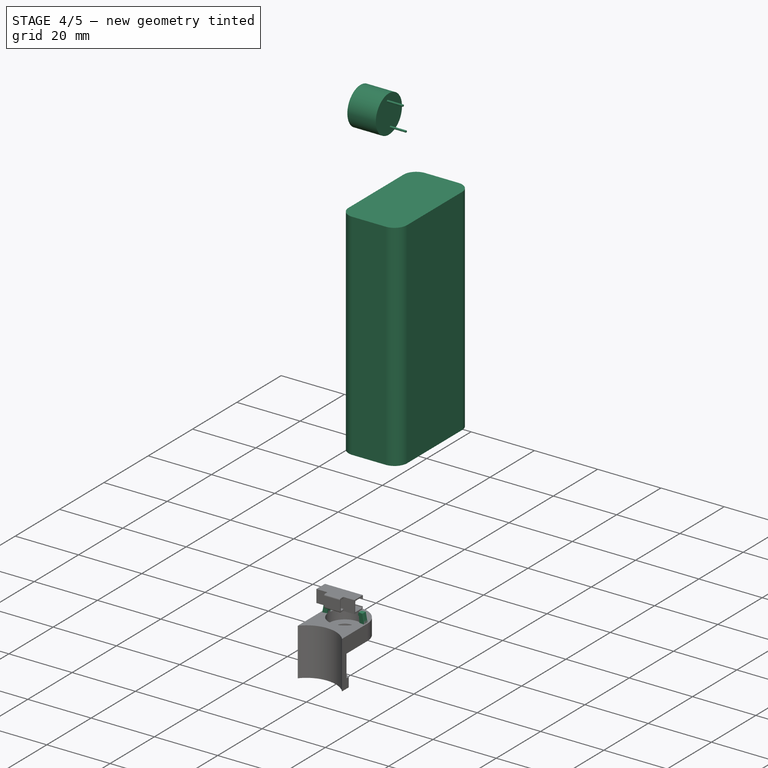
[diagram: stage 4 of 5 — iso view after this stage's code; geometry added in this stage tinted green]
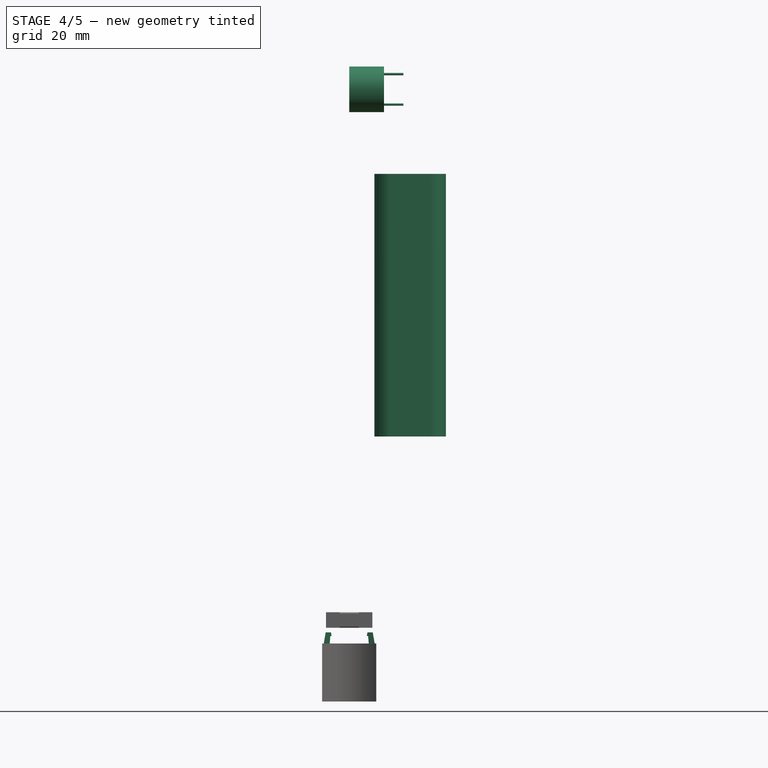
[diagram: stage 4 of 5 — front view after this stage's code; geometry added in this stage tinted green]
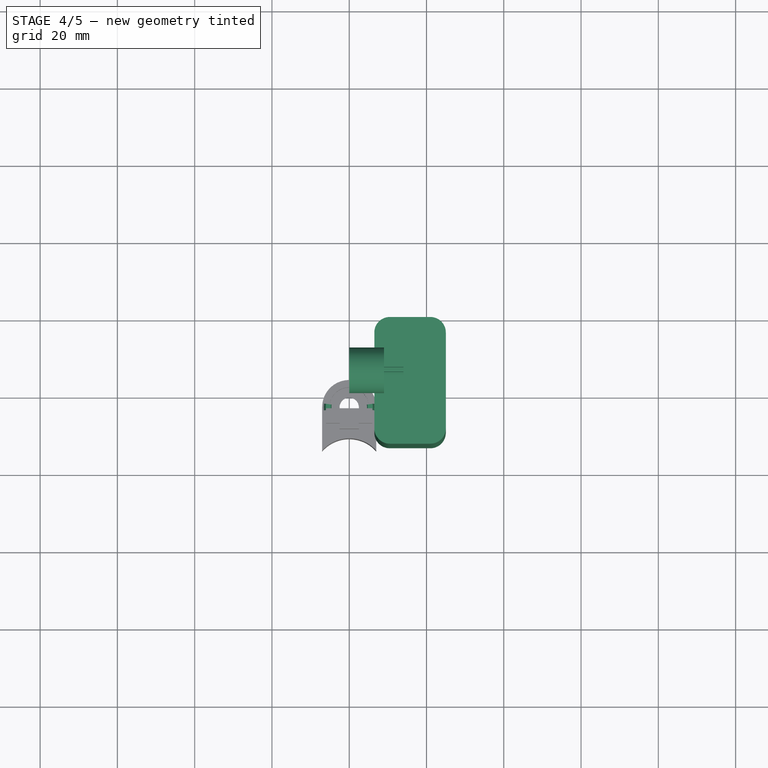
[diagram: stage 4 of 5 — top view after this stage's code; geometry added in this stage tinted green]
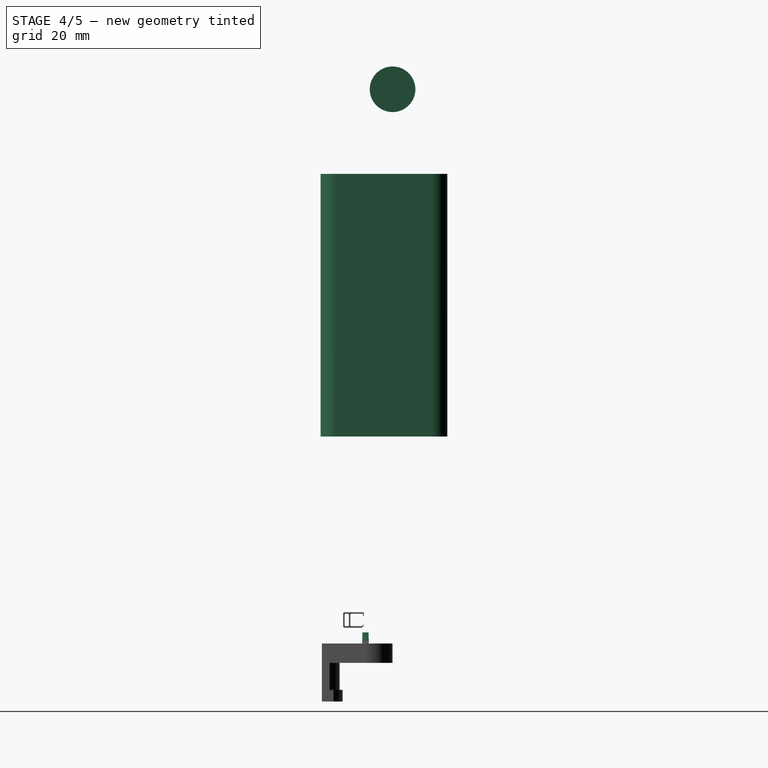
[diagram: stage 4 of 5 — right view after this stage's code; geometry added in this stage tinted green]
FEATURE [PartDesign::Body] Body005  label="Wheelchair"
  Group = -> [DatumLine,CopyPad005002,Sketch013,Pad007]
  Origin = -> Origin005
  Tip = -> Pad007
FEATURE [PartDesign::ShapeBinder] CopyPad007
  Support = -> [Body005]
  TraceSupport = false
FEATURE [PartDesign::Plane] DatumPlane009
  Length = 74.2606
  MapMode = 5
  Placement = pos=(0,0,0) rot=(0.57735,0.57735,0.57735;2.0944rad)
  ResizeMode = 0
  Support = -> [YZ_Plane007]
  Width = 181.3
FEATURE [Sketcher::SketchObject] Sketch015
  MapMode = 5
  Placement = pos=(0,0,0) rot=(0.57735,0.57735,0.57735;2.0944rad)
  Support = -> [DatumPlane009]
  sketch-geometry (5):
    g0: Circle CenterX=24.4088 CenterY=131.451 CenterZ=0 NormalX=0 NormalY=0 NormalZ=1 AngleXU=0 Radius=5.9
    g1: Circle [constr] CenterX=24.4088 CenterY=131.451 CenterZ=0 NormalX=0 NormalY=0 NormalZ=1 AngleXU=0 Radius=4
    g2: Circle [constr] CenterX=25.5873 CenterY=135.273 CenterZ=0 NormalX=0 NormalY=0 NormalZ=1 AngleXU=0 Radius=0.3
    g3: Circle [constr] CenterX=23.2302 CenterY=127.629 CenterZ=0 NormalX=0 NormalY=0 NormalZ=1 AngleXU=0 Radius=0.3
    g4: LineSegment [constr] StartX=22.1058 StartY=123.982 StartZ=0 EndX=26.4246 EndY=137.989 EndZ=0
  constraints (10):
    c: Diameter(g0) = 11.8
    c: Coincident(g1,g0)
    c: Diameter(g1) = 8
    c: PointOnObject(g2,g1)
    c: Diameter(g2) = 0.6
    c: PointOnObject(g3,g1)
    c: Diameter(g3) = 0.6
    c: PointOnObject(g0,g4)
    c: PointOnObject(g3,g4)
    c: PointOnObject(g2,g4)
FEATURE [PartDesign::Pad] Pad009
  Direction = (1,1,1)
  Length = 9
  Length2 = 100
  Placement = pos=(0,0,0) rot=(0.57735,0.57735,0.57735;2.0944rad)
  Profile = -> Sketch015
  Type = 0
FEATURE [Sketcher::SketchObject] Sketch016
  ExternalGeometry = -> [Pad009]
  MapMode = 5
  Placement = pos=(9,0,1e-15) rot=(0.57735,0.57735,0.57735;2.0944rad)
  Support = -> [Pad009]
  expr: Constraints[6] = Sketch015.Constraints[6]
  expr: Constraints[2] = Sketch015.Constraints[2]
  expr: Constraints[4] = Sketch015.Constraints[4]
  expr: Constraints[0] = Sketch015.Constraints[0]
  sketch-geometry (5):
    g0: Circle [constr] CenterX=24.4088 CenterY=131.451 CenterZ=0 NormalX=0 NormalY=0 NormalZ=1 AngleXU=0 Radius=5.9
    g1: Circle [constr] CenterX=24.4088 CenterY=131.451 CenterZ=0 NormalX=0 NormalY=0 NormalZ=1 AngleXU=0 Radius=4
    g2: Circle CenterX=23.7422 CenterY=135.395 CenterZ=0 NormalX=0 NormalY=0 NormalZ=1 AngleXU=0 Radius=0.3
    g3: Circle CenterX=25.0753 CenterY=127.507 CenterZ=0 NormalX=0 NormalY=0 NormalZ=1 AngleXU=0 Radius=0.3
    g4: LineSegment [constr] StartX=23.7422 StartY=135.395 StartZ=0 EndX=25.0753 EndY=127.507 EndZ=0
  constraints (11):
    c: Diameter(g0) = 11.8
    c: Coincident(g1,g0)
    c: Diameter(g1) = 8
    c: PointOnObject(g2,g1)
    c: Diameter(g2) = 0.6
    c: PointOnObject(g3,g1)
    c: Diameter(g3) = 0.6
    c: Coincident(g0,g-3)
    c: PointOnObject(g0,g4)
    c: Coincident(g2,g4)
    c: Coincident(g3,g4)
FEATURE [PartDesign::Pad] Pad010
  BaseFeature = -> Pad009
  Direction = (1,1,1)
  Length = 5
  Length2 = 100
  Placement = pos=(0,0,0) rot=(0.57735,0.57735,0.57735;2.0944rad)
  Profile = -> Sketch016
  Type = 0
FEATURE [PartDesign::Body] Body007  label="Buzzer"
  Group = -> [DatumPlane009,Sketch015,Pad009,Sketch016,Pad010]
  Origin = -> Origin007
  Tip = -> Pad010
FEATURE [PartDesign::ShapeBinder] CopyPad005003
  Placement = pos=(0,0,0) rot=(1,0,0;1.5708rad)
  TraceSupport = false
FEATURE [PartDesign::Line] CopyDatumLine
  AttacherType = Attacher::AttachEngineLine
  Length = 20
  Placement = pos=(-1.1e-14,66.2384,85) rot=(0.57735,0.57735,0.57735;2.0944rad)
  ResizeMode = 0
FEATURE [PartDesign::Line] DatumLine001
  AttacherType = Attacher::AttachEngineLine
  Length = 20
  MapMode = 29
  Placement = pos=(-1.1e-14,66.2384,85) rot=(0.57735,0.57735,0.57735;2.0944rad)
  ResizeMode = 0
  Support = -> [CopyDatumLine]
FEATURE [PartDesign::ShapeBinder] CopyPad005004
  Placement = pos=(0,0,0) rot=(1,0,0;1.5708rad)
  TraceSupport = false
FEATURE [PartDesign::Plane] DatumPlane008
  AttachmentOffset = pos=(0,0,4) rot=(0,0,1;0rad)
  Length = 153.076
  MapMode = 5
  Placement = pos=(6.5,0,1.2e-15) rot=(0.707107,0,0.707107;3.14159rad)
  ResizeMode = 0
  Support = -> [CopyPad005004]
  Width = 82.0959
FEATURE [Sketcher::SketchObject] Sketch014
  MapMode = 5
  Placement = pos=(6.5,0,1.2e-15) rot=(0.707107,0,0.707107;3.14159rad)
  Support = -> [DatumPlane008]
  sketch-geometry (4):
    g0: LineSegment StartX=41.5744 StartY=-5.79385 StartZ=0 EndX=109.574 EndY=-5.79385 EndZ=0
    g1: LineSegment StartX=109.574 StartY=-5.79385 StartZ=0 EndX=109.574 EndY=-38.5938 EndZ=0
    g2: LineSegment StartX=109.574 StartY=-38.5938 StartZ=0 EndX=41.5744 EndY=-38.5938 EndZ=0
    g3: LineSegment StartX=41.5744 StartY=-38.5938 StartZ=0 EndX=41.5744 EndY=-5.79385 EndZ=0
  constraints (10):
    c: Coincident(g0,g1)
    c: Coincident(g1,g2)
    c: Coincident(g2,g3)
    c: Coincident(g3,g0)
    c: Horizontal(g0)
    c: Horizontal(g2)
    c: Vertical(g1)
    c: Vertical(g3)
    c: DistanceX(g0,g0) = 68
    c: DistanceY(g1,g1) = 32.8
FEATURE [PartDesign::Pad] Pad008
  Direction = (1,1,1)
  Length = 18.5
  Length2 = 100
  Placement = pos=(6.5,0,1e-15) rot=(0.707107,0,0.707107;3.14159rad)
  Profile = -> Sketch014
  Type = 0
FEATURE [PartDesign::Fillet] Fillet002
  Base = -> Pad008 [Edge10,Edge9,Edge3,Edge4]
  BaseFeature = -> Pad008
  Placement = pos=(6.5,0,1e-15) rot=(0.707107,0,0.707107;3.14159rad)
  Radius = 4
  SupportTransform = false
FEATURE [PartDesign::Body] Body006  label="BatteryCase_AA"
  Group = -> [DatumPlane008,DatumLine001,CopyPad007,Sketch014,Pad008,Fillet002,Fillet003,CopyPad005003,CopyDatumLine,CopyPad005004]
  Origin = -> Origin006
  Tip = -> Fillet003
FEATURE [PartDesign::Line] DatumLine002
  AttacherType = Attacher::AttachEngineLine
  Length = 20
  MapMode = 42
  Placement = pos=(-1e-15,17.4,-12) rot=(0,0,1;0rad)
  ResizeMode = 0
  Support = -> [Pad002]
FEATURE [PartDesign::Point] DatumPoint
  AttacherType = Attacher::AttachEnginePoint
  MapMode = 36
  Placement = pos=(0,17.4,-12) rot=(1,0,0;1.5708rad)
  Support = -> [Pad002]
FEATURE [PartDesign::Plane] DatumPlane010
  Length = 60.198
  MapMode = 5
  Placement = pos=(0,0,0) rot=(0.57735,0.57735,0.57735;2.0944rad)
  ResizeMode = 0
  Support = -> [YZ_Plane002]
  Width = 62.198
FEATURE [PartDesign::Plane] DatumPlane011
  AttachmentOffset = pos=(0,0,0) rot=(0,1,0;1.5708rad)
  Length = 60.198
  MapMode = 6
  Placement = pos=(6.5e-15,17.4,-12) rot=(0,-0.707107,0.707107;3.14159rad)
  ResizeMode = 0
  Support = -> [DatumPlane010,DatumPoint]
  Width = 62.198
FEATURE [Sketcher::SketchObject] Sketch017
  ExternalGeometry = -> [DatumPlane002,DatumLine002,Pad002]
  MapMode = 5
  Placement = pos=(6.5e-15,17.4,-12) rot=(0,-0.707107,0.707107;3.14159rad)
  Support = -> [DatumPlane011]
  sketch-geometry (6):
    g0: LineSegment StartX=-5.1 StartY=0 StartZ=0 EndX=-4.93377 EndY=-1.9 EndZ=0
    g1: LineSegment StartX=-4.93377 StartY=-1.9 StartZ=0 EndX=-4.6 EndY=-2 EndZ=0
    g2: LineSegment StartX=-4.6 StartY=-2 StartZ=0 EndX=-4.75869 EndY=-2.9 EndZ=0
    g3: LineSegment StartX=-4.75869 StartY=-2.9 StartZ=0 EndX=-6.08865 EndY=-2.9 EndZ=0
    g4: LineSegment StartX=-6.08865 StartY=-2.9 StartZ=0 EndX=-6.6 EndY=5.8e-15 EndZ=0
    g5: LineSegment StartX=-6.6 StartY=5.8e-15 StartZ=0 EndX=-5.1 EndY=0 EndZ=0
  constraints (17):
    c: Coincident(g-5,g0)
    c: Coincident(g0,g1)
    c: Coincident(g1,g2)
    c: Coincident(g2,g3)
    c: Horizontal(g3)
    c: Coincident(g3,g4)
    c: PointOnObject(g4,g-3)
    c: Coincident(g4,g5)
    c: Coincident(g5,g0)
    c: DistanceY(g0,g-7) = 4.9
    c: Angle(g0,g-7) = 3.05433
    c: DistanceY(g3,g0) = 1
    c: DistanceX(g5,g5) = 1.5
    c: Angle(g2,g-7) = 0.174533
    c: Angle(g-7,g4) = 0.174533
    c: DistanceX(g0,g1) = 0.5
    c: DistanceY(g1,g0) = 0.1
FEATURE [PartDesign::Revolution] Revolution002
  Angle = 15
  Axis = (1e-16,0,1)
  Base = (-8e-16,17.4,-12)
  BaseFeature = -> Pad002
  Midplane = true
  Placement = pos=(0,3e-15,-12) rot=(1,0,0;3.14159rad)
  Profile = -> Sketch017
  ReferenceAxis = -> DatumLine002
FEATURE [PartDesign::Mirrored] Mirrored001
  BaseFeature = -> Revolution002
  MirrorPlane = -> DatumPlane010
  Originals = -> [Revolution002]
  Placement = pos=(0,3e-15,-12) rot=(1,0,0;3.14159rad)
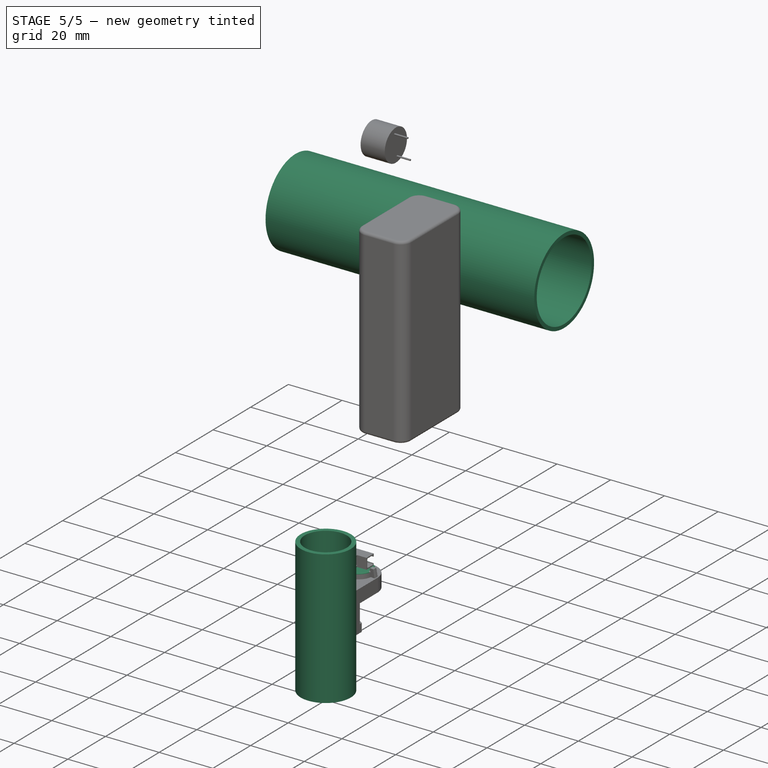
[diagram: stage 5 of 5 — iso view after this stage's code; geometry added in this stage tinted green]
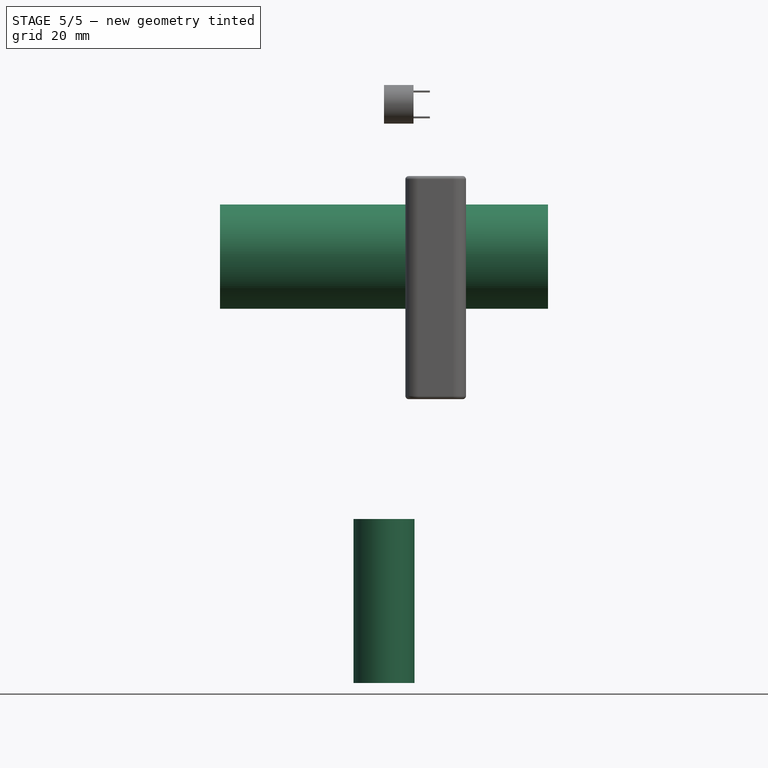
[diagram: stage 5 of 5 — front view after this stage's code; geometry added in this stage tinted green]
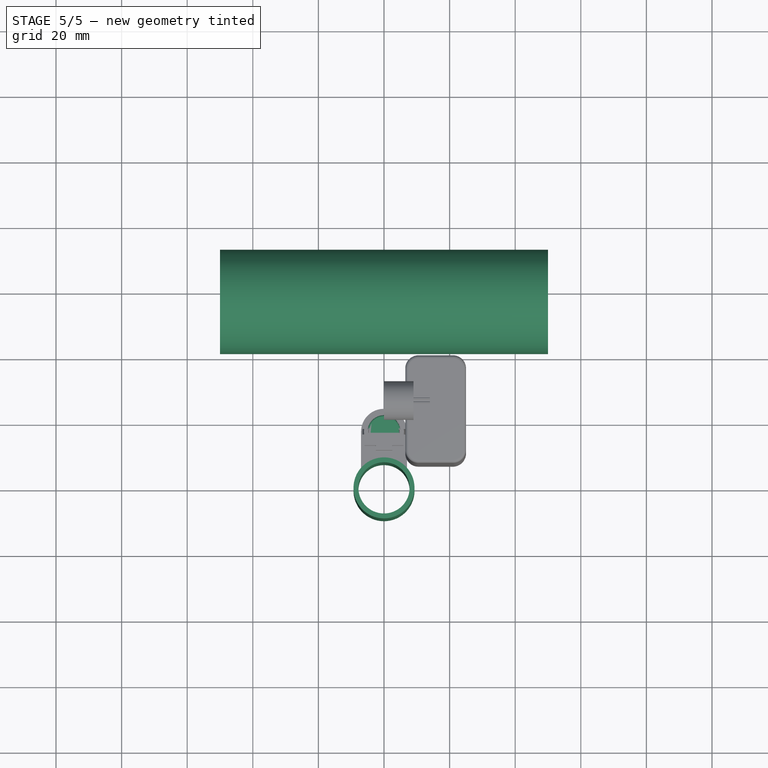
[diagram: stage 5 of 5 — top view after this stage's code; geometry added in this stage tinted green]
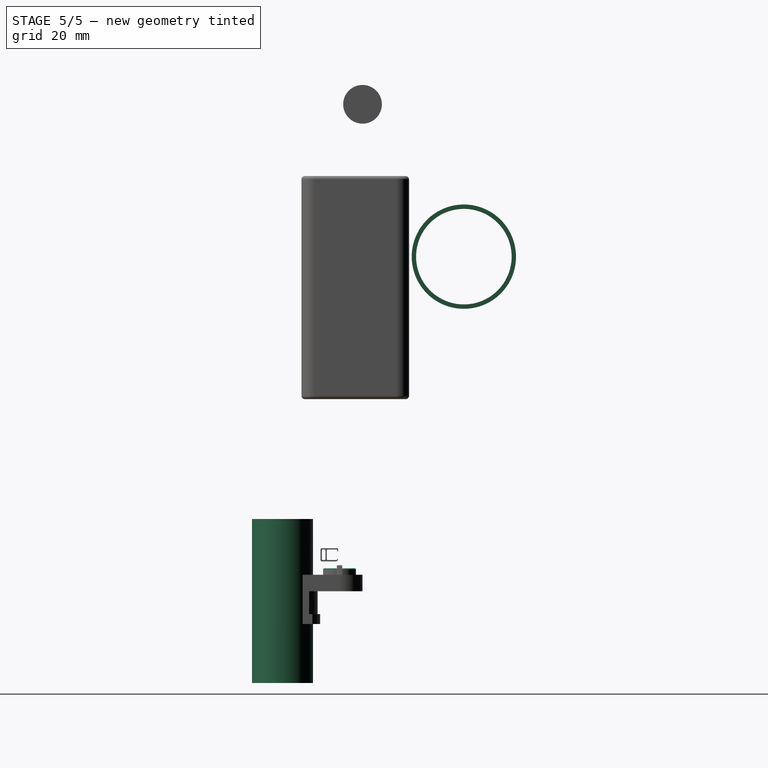
[diagram: stage 5 of 5 — right view after this stage's code; geometry added in this stage tinted green]
FEATURE [Sketcher::SketchObject] Sketch001
  MapMode = 5
  Placement = pos=(0,0,0) rot=(1,0,0;1.5708rad)
  Support = -> [XZ_Plane]
  sketch-geometry (10):
    g0: LineSegment StartX=7.8 StartY=5 StartZ=0 EndX=9.3 EndY=5 EndZ=0
    g1: LineSegment StartX=9.3 StartY=5 StartZ=0 EndX=9.3 EndY=-45 EndZ=0
    g2: LineSegment StartX=9.3 StartY=-45 StartZ=0 EndX=7.8 EndY=-45 EndZ=0
    g3: LineSegment StartX=7.8 StartY=-45 StartZ=0 EndX=7.8 EndY=5 EndZ=0
    g4: LineSegment StartX=-9.3 StartY=5 StartZ=0 EndX=-7.8 EndY=5 EndZ=0
    g5: LineSegment StartX=-7.8 StartY=5 StartZ=0 EndX=-7.8 EndY=-45 EndZ=0
    g6: LineSegment StartX=-7.8 StartY=-45 StartZ=0 EndX=-9.3 EndY=-45 EndZ=0
    g7: LineSegment StartX=-9.3 StartY=-45 StartZ=0 EndX=-9.3 EndY=5 EndZ=0
    g8: LineSegment [constr] StartX=-7.54965 StartY=5 StartZ=0 EndX=7.69914 EndY=5 EndZ=0
    g9: LineSegment [constr] StartX=0 StartY=-1.7643 StartZ=0 EndX=0 EndY=7.84145 EndZ=0
  constraints (27):
    c: Coincident(g0,g1)
    c: Coincident(g1,g2)
    c: Coincident(g2,g3)
    c: Coincident(g3,g0)
    c: Horizontal(g0)
    c: Horizontal(g2)
    c: Vertical(g1)
    c: Vertical(g3)
    c: Coincident(g4,g5)
    c: Coincident(g5,g6)
    c: Coincident(g6,g7)
    c: Coincident(g7,g4)
    c: Horizontal(g4)
    c: Horizontal(g6)
    c: Vertical(g5)
    c: Vertical(g7)
    c: Horizontal(g8)
    c: DistanceY(g-1,g8) = 5
    c: Equal(g0,g4)
    c: Vertical(g9)
    c: PointOnObject(g-1,g9)
    c: Symmetric(g0,g4,g9)
    c: DistanceX(g4,g0) = 18.6
    c: PointOnObject(g4,g8)
    c: DistanceX(g4,g4) = 1.5
    c: Equal(g1,g5)
    c: DistanceY(g1,g1) = 50
FEATURE [PartDesign::Revolution] Revolution001
  AllowMultiFace = false
  Angle = 360
  Axis = (0,2e-16,1)
  Base = (0,0,0)
  Placement = pos=(0,0,0) rot=(1,0,0;1.5708rad)
  Profile = -> Sketch001
  ReferenceAxis = -> Sketch001 [V_Axis]
FEATURE [PartDesign::ShapeBinder] CopyPad002
  Placement = pos=(0,-3e-15,-12) rot=(1,0,0;3.14159rad)
  TraceSupport = false
FEATURE [PartDesign::Plane] DatumPlane003
  Length = 60
  MapMode = 5
  Placement = pos=(0,-4.2e-15,-15) rot=(0,0,1;0rad)
  ResizeMode = 0
  Support = -> [CopyPad002]
  Width = 60
FEATURE [Sketcher::SketchObject] Sketch007
  ExternalGeometry = -> [CopyPad002]
  MapMode = 5
  Placement = pos=(0,-4.2e-15,-15) rot=(0,0,1;0rad)
  Support = -> [CopyPad002]
  sketch-geometry (1):
    g0: Circle CenterX=-2e-16 CenterY=17.4 CenterZ=0 NormalX=0 NormalY=0 NormalZ=1 AngleXU=0 Radius=5
  constraints (2):
    c: Coincident(g0,g-3)
    c: Diameter(g0) = 10
FEATURE [PartDesign::Pad] Pad003
  AllowMultiFace = false
  Direction = (1,1,1)
  Length = 5
  Length2 = 100
  Placement = pos=(0,-3e-15,-12) rot=(1,0,0;3.14159rad)
  Profile = -> Sketch007
  Type = 0
FEATURE [PartDesign::Fillet] Fillet
  Base = -> Pad003 [Edge3,Edge2]
  BaseFeature = -> Pad003
  Placement = pos=(0,-3e-15,-12) rot=(1,0,0;3.14159rad)
  Radius = 0.4
  SupportTransform = false
FEATURE [PartDesign::ShapeBinder] CopyPad005001
  Placement = pos=(0,0,0) rot=(1,0,0;1.5708rad)
  TraceSupport = false
FEATURE [PartDesign::Body] Body004  label="reed switch"
  Group = -> [DatumPlane005,DatumPlane006,CopyPad005,DatumPlane007,CopyYZ_Plane,Sketch010,Pad006,Sketch011,Sketch012,AdditivePipe,Mirrored,Fillet001,CopyPad005001]
  Origin = -> Origin004
  Tip = -> Fillet001
FEATURE [PartDesign::ShapeBinder] CopyPad005002
  Placement = pos=(0,0,0) rot=(1,0,0;1.5708rad)
  Support = -> [Pad005]
  TraceSupport = false
FEATURE [PartDesign::Line] DatumLine
  AttacherType = Attacher::AttachEngineLine
  Length = 20
  MapMode = 42
  Placement = pos=(-1.04e-14,55.3,85) rot=(0.57735,0.57735,0.57735;2.0944rad)
  ResizeMode = 0
  Support = -> [CopyPad005002]
FEATURE [Sketcher::SketchObject] Sketch013
  ExternalGeometry = -> [DatumLine,CopyPad005002]
  MapMode = 5
  Placement = pos=(0,0,0) rot=(0.57735,0.57735,0.57735;2.0944rad)
  Support = -> [YZ_Plane005]
  sketch-geometry (2):
    g0: Circle CenterX=55.3 CenterY=85 CenterZ=0 NormalX=0 NormalY=0 NormalZ=1 AngleXU=0 Radius=15.9
    g1: Circle CenterX=55.3 CenterY=85 CenterZ=0 NormalX=0 NormalY=0 NormalZ=1 AngleXU=0 Radius=14.5653
  constraints (3):
    c: Coincident(g0,g-4)
    c: Coincident(g1,g0)
    c: Diameter(g0) = 31.8
FEATURE [PartDesign::Pad] Pad007
  Direction = (1,1,1)
  Length = 100
  Length2 = 100
  Midplane = true
  Placement = pos=(0,0,0) rot=(0.57735,0.57735,0.57735;2.0944rad)
  Profile = -> Sketch013
  Type = 0
FEATURE [PartDesign::Fillet] Fillet003
  Base = -> Fillet002 [Face5,Face2]
  BaseFeature = -> Fillet002
  Placement = pos=(6.5,0,1e-15) rot=(0.707107,0,0.707107;3.14159rad)
  Radius = 1
  SupportTransform = false
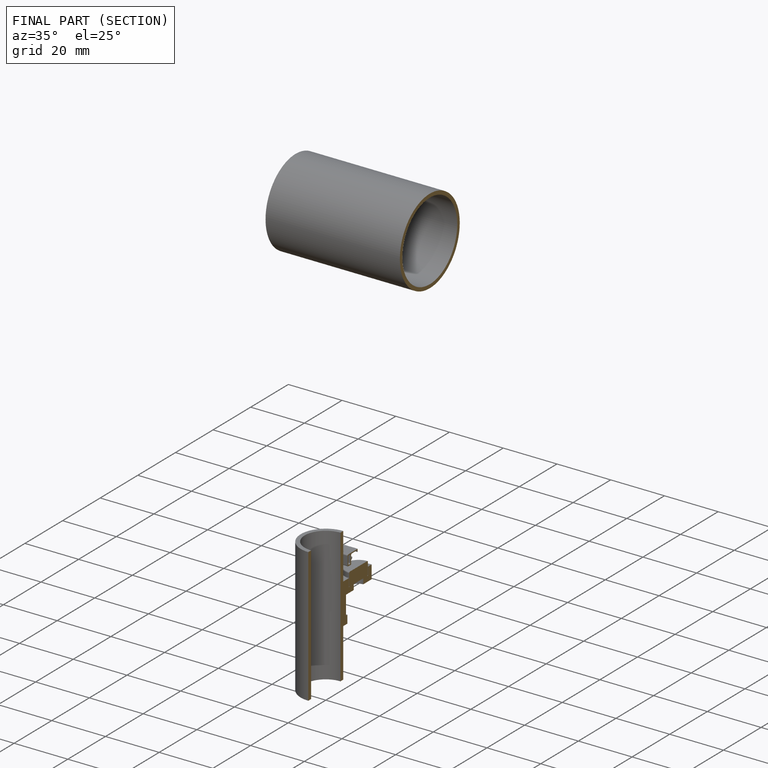
[diagram: finished part — half-section view (interior)]
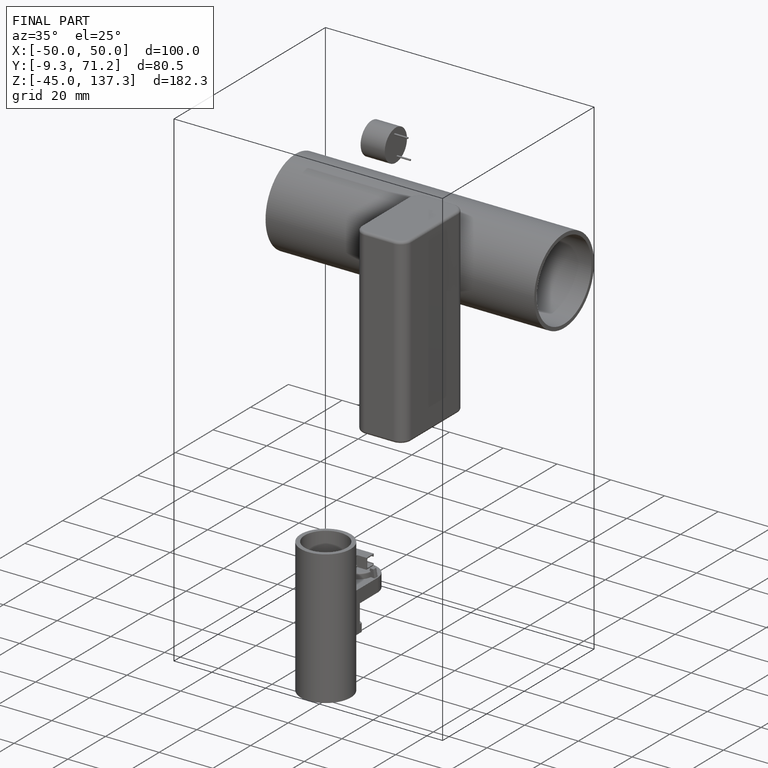
[diagram: finished part — iso view with bounding-box wireframe]
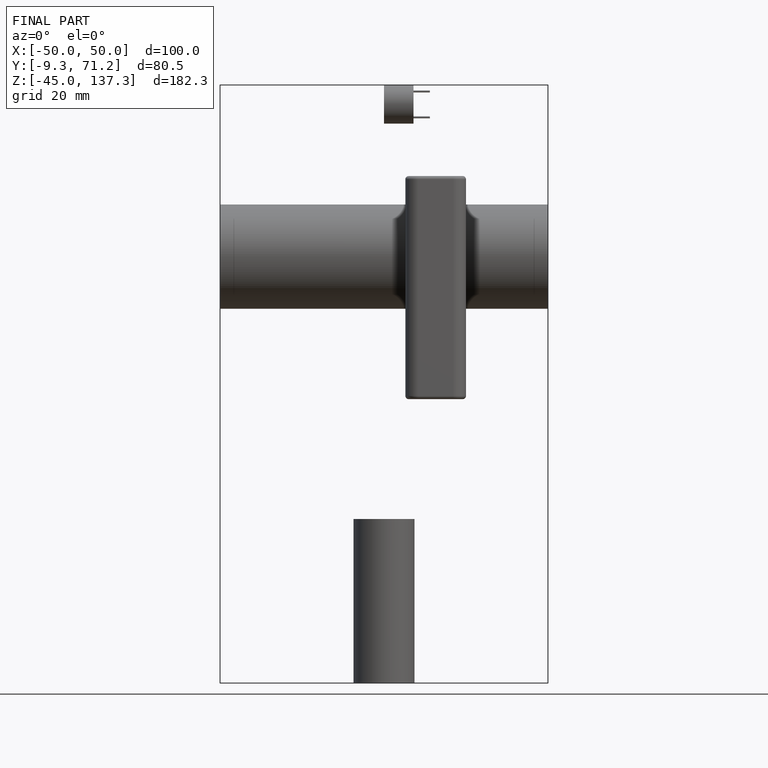
[diagram: finished part — front view with bounding-box wireframe]
